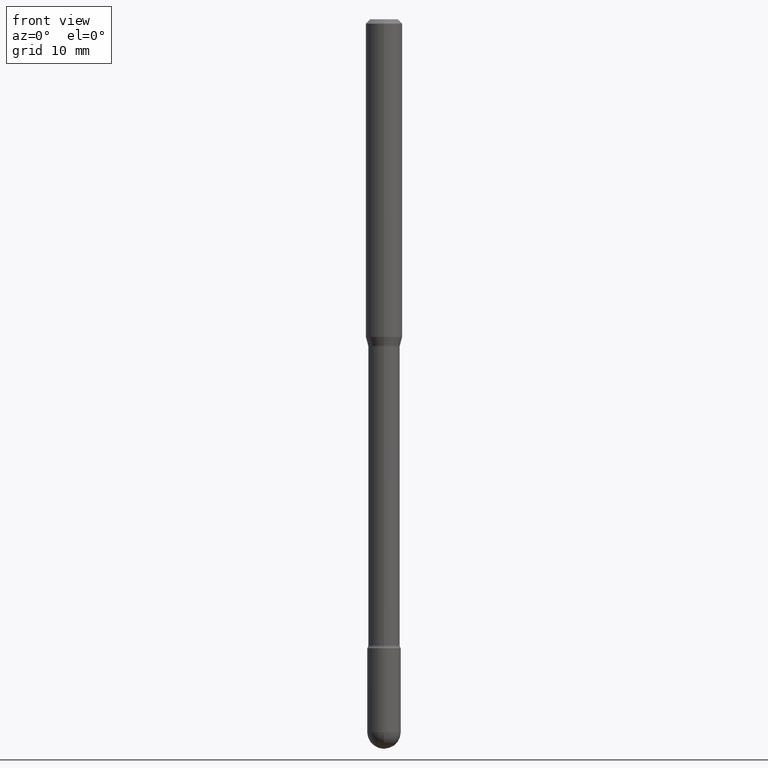
[diagram: clean part render]
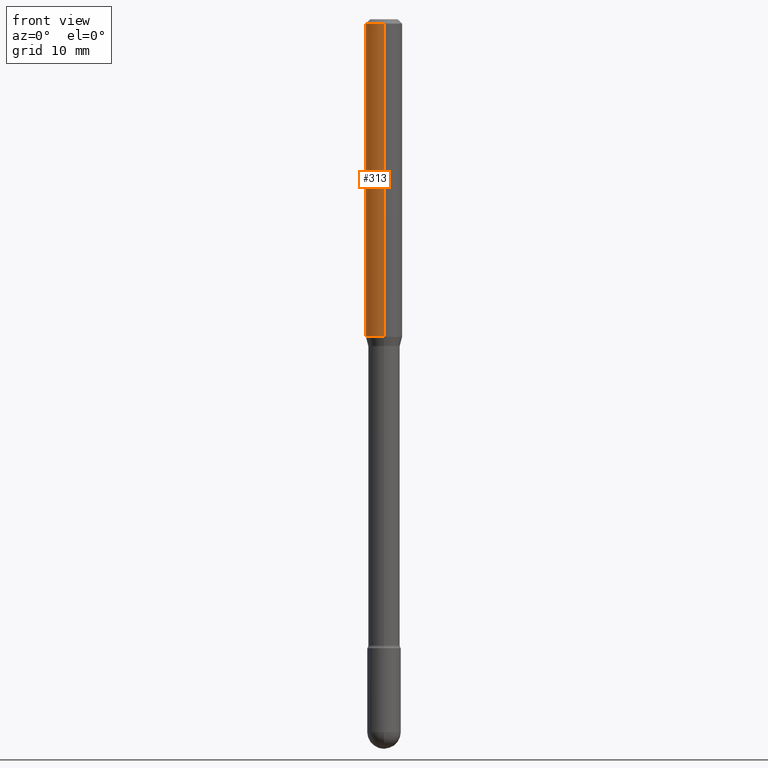
[diagram: same view with one face highlighted and labeled with its STEP entity id]
A machine part, front view. The second image highlights one B-rep face of the part: STEP entity #313.
In plain terms, the highlighted cylindrical surface (edge-blend (fillet) strip) has radius 1.5875 mm, axis along (-0, 0, 1).
Its self-contained STEP definition (entity closure, byte-faithful):
#7 = ORIENTED_EDGE ( 'NONE', *, *, #153, .F. ) ;
#14 = CARTESIAN_POINT ( 'NONE',  ( 4.440892098500625669E-16, 0.06250000000000000000, 2.598604840068803835E-16 ) ) ;
#24 = VERTEX_POINT ( 'NONE', #530 ) ;
#27 = DIRECTION ( 'NONE',  ( -2.445520969400464168E-29, 3.491406638149850481E-15, 1.000000000000000000 ) ) ;
#31 = DIRECTION ( 'NONE',  ( -2.445520969400464168E-29, 3.491406638149850481E-15, 1.000000000000000000 ) ) ;
#36 = EDGE_CURVE ( 'NONE', #516, #161, #439, .T. ) ;
#51 = DIRECTION ( 'NONE',  ( -2.445520969400463888E-29, 3.491406638149850481E-15, 1.000000000000000000 ) ) ;
#103 = CIRCLE ( 'NONE', #308, 0.06250000000000000000 ) ;
#130 = EDGE_LOOP ( 'NONE', ( #7, #552, #480, #483 ) ) ;
#141 = CARTESIAN_POINT ( 'NONE',  ( -4.364351673553916201E-16, -0.06250000000000000000, 6.962863137756116444E-16 ) ) ;
#142 = CARTESIAN_POINT ( 'NONE',  ( -4.364351673553912750E-16, -0.06250000000000005551, -0.01499999999999986587 ) ) ;
#146 = CARTESIAN_POINT ( 'NONE',  ( 4.440892098500893388E-16, 0.06249999999999993755, -0.01500000000000030129 ) ) ;
#151 = DIRECTION ( 'NONE',  ( -2.445520969400464168E-29, 3.491406638149850481E-15, 1.000000000000000000 ) ) ;
#153 = EDGE_CURVE ( 'NONE', #24, #154, #319, .T. ) ;
#154 = VERTEX_POINT ( 'NONE', #146 ) ;
#157 = FACE_OUTER_BOUND ( 'NONE', #130, .T. ) ;
#161 = VERTEX_POINT ( 'NONE', #142 ) ;
#162 = CARTESIAN_POINT ( 'NONE',  ( 2.661861953829350212E-29, -3.800271030886609778E-15, -1.088464170676043397 ) ) ;
#208 = CARTESIAN_POINT ( 'NONE',  ( -1.169113584055446105E-44, 1.669184350826100908E-30, 4.780733988912460139E-16 ) ) ;
#211 = DIRECTION ( 'NONE',  ( -6.982962677686265922E-15, -1.000000000000000000, 3.483106191921935554E-15 ) ) ;
#213 = AXIS2_PLACEMENT_3D ( 'NONE', #208, #151, #285 ) ;
#224 = DIRECTION ( 'NONE',  ( -2.445520969400463888E-29, 3.491406638149850481E-15, 1.000000000000000000 ) ) ;
#233 = CARTESIAN_POINT ( 'NONE',  ( -4.364351673553650454E-16, -0.06250000000000381639, -1.088464170676042952 ) ) ;
#241 = DIRECTION ( 'NONE',  ( -6.982962677686265922E-15, -1.000000000000000000, 4.370956789862821150E-15 ) ) ;
#265 = VECTOR ( 'NONE', #51, 39.37007874015748143 ) ;
#285 = DIRECTION ( 'NONE',  ( -6.982962677686265922E-15, -1.000000000000000000, 3.491406638149849692E-15 ) ) ;
#308 = AXIS2_PLACEMENT_3D ( 'NONE', #424, #31, #211 ) ;
#313 = ADVANCED_FACE ( 'NONE', ( #157 ), #542, .T. ) ;
#319 = LINE ( 'NONE', #14, #265 ) ;
#352 = EDGE_CURVE ( 'NONE', #24, #516, #468, .T. ) ;
#370 = VECTOR ( 'NONE', #224, 39.37007874015748143 ) ;
#404 = EDGE_CURVE ( 'NONE', #154, #161, #103, .T. ) ;
#424 = CARTESIAN_POINT ( 'NONE',  ( 3.668281454100716606E-31, -5.237109957224805058E-17, -0.01500000000000008271 ) ) ;
#439 = LINE ( 'NONE', #141, #370 ) ;
#449 = AXIS2_PLACEMENT_3D ( 'NONE', #162, #27, #241 ) ;
#468 = CIRCLE ( 'NONE', #449, 0.06250000000000000000 ) ;
#480 = ORIENTED_EDGE ( 'NONE', *, *, #36, .T. ) ;
#483 = ORIENTED_EDGE ( 'NONE', *, *, #404, .F. ) ;
#516 = VERTEX_POINT ( 'NONE', #233 ) ;
#530 = CARTESIAN_POINT ( 'NONE',  ( 4.440892098500890430E-16, 0.06249999999999618361, -1.088464170676043619 ) ) ;
#542 = CYLINDRICAL_SURFACE ( 'NONE', #213, 0.06250000000000000000 ) ;
#552 = ORIENTED_EDGE ( 'NONE', *, *, #352, .T. ) ;